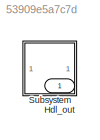
MODEL slx_53909e5a7c7d
KIND model
CONFIG AbsTol = auto
CONFIG EnableMultiTasking = off
CONFIG FixedStep = auto
CONFIG MaxStep = auto
CONFIG MinStep = auto
CONFIG RelTol = 1e-3
CONFIG SampleTimeConstraint = Unconstrained
CONFIG SolverName = VariableStepAuto
CONFIG StartTime = 0.0
CONFIG StopTime = 10.0
BLOCK [Outport] Hdl_out
  OutDataTypeStr = uint8
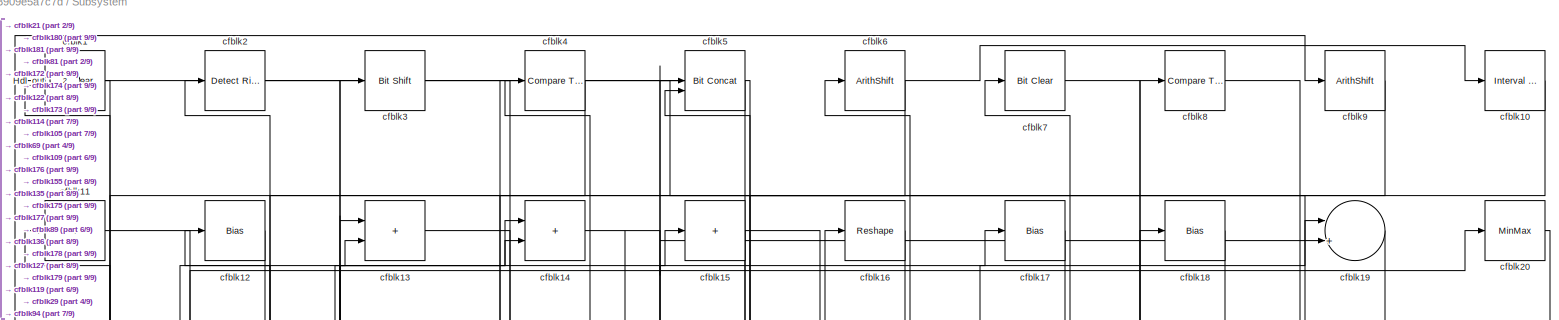
[diagram: Subsystem - part 1/9, full width, top band]
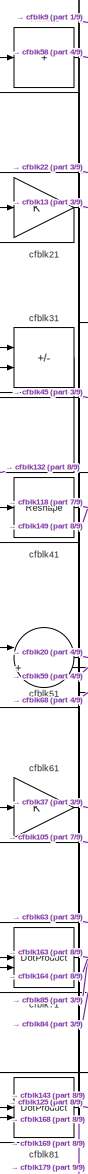
[diagram: Subsystem - part 2/9, top left region]
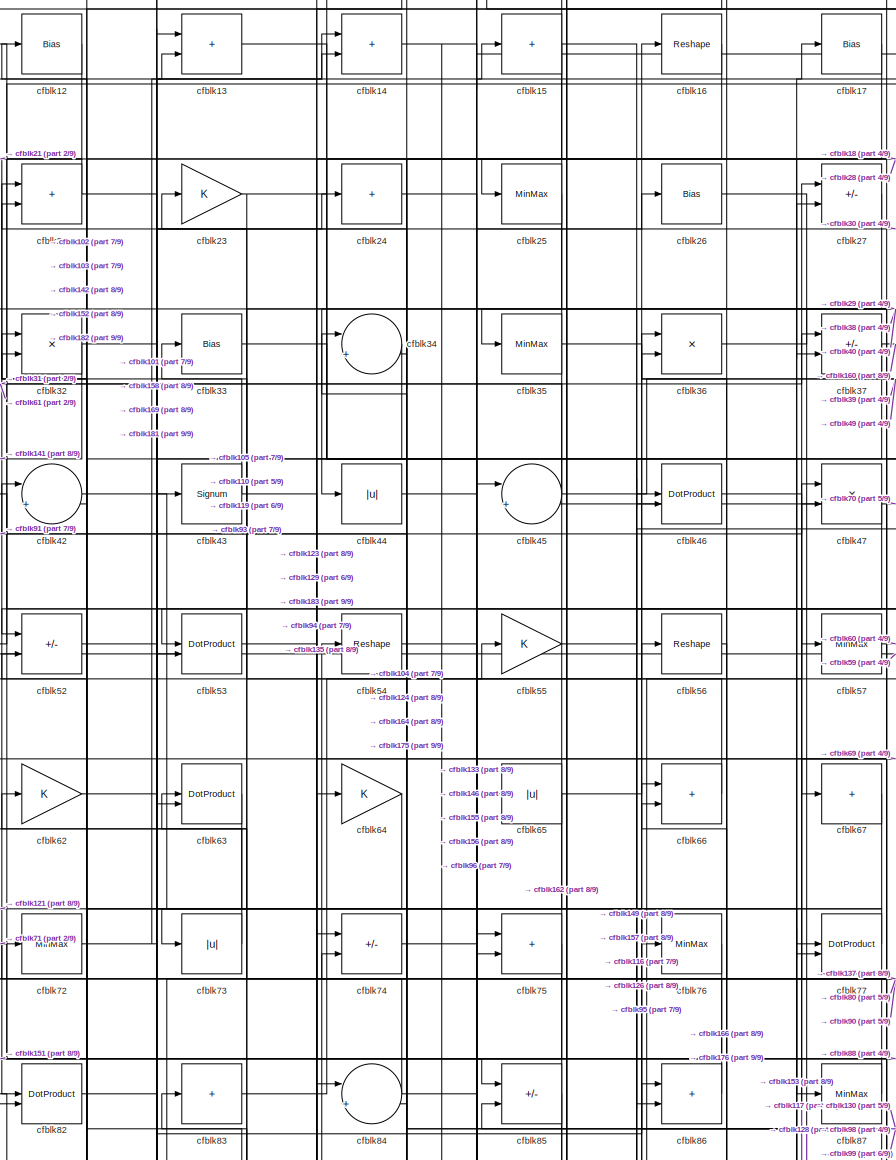
[diagram: Subsystem - part 3/9, top center region]
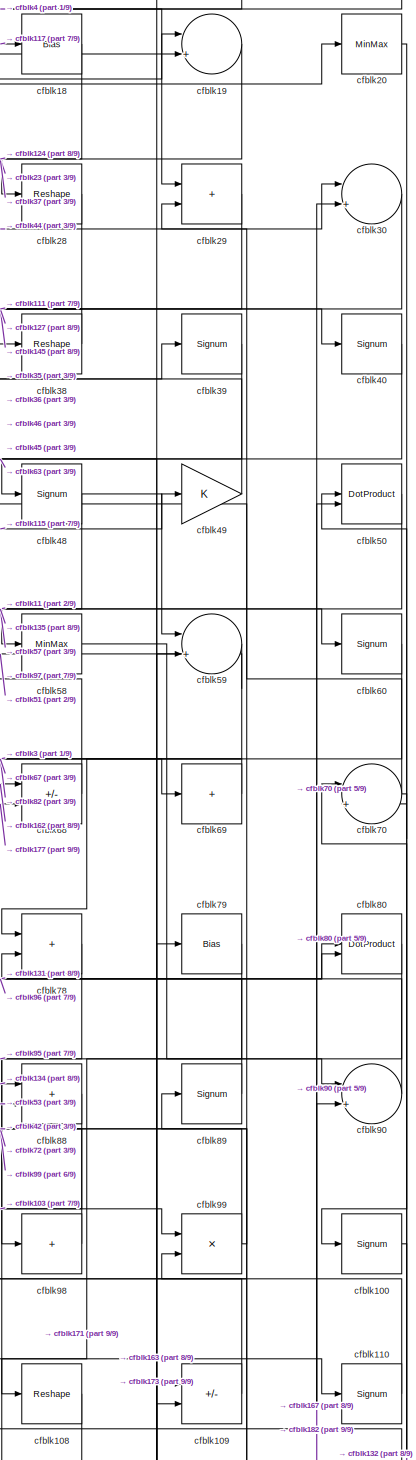
[diagram: Subsystem - part 4/9, top right region]
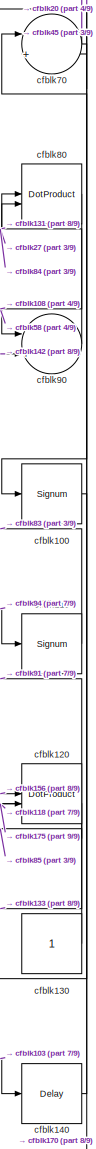
[diagram: Subsystem - part 5/9, middle right region]
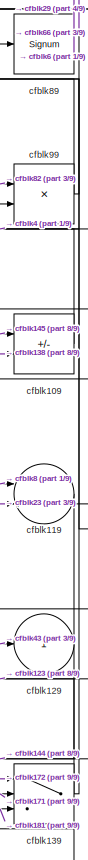
[diagram: Subsystem - part 6/9, middle right region]
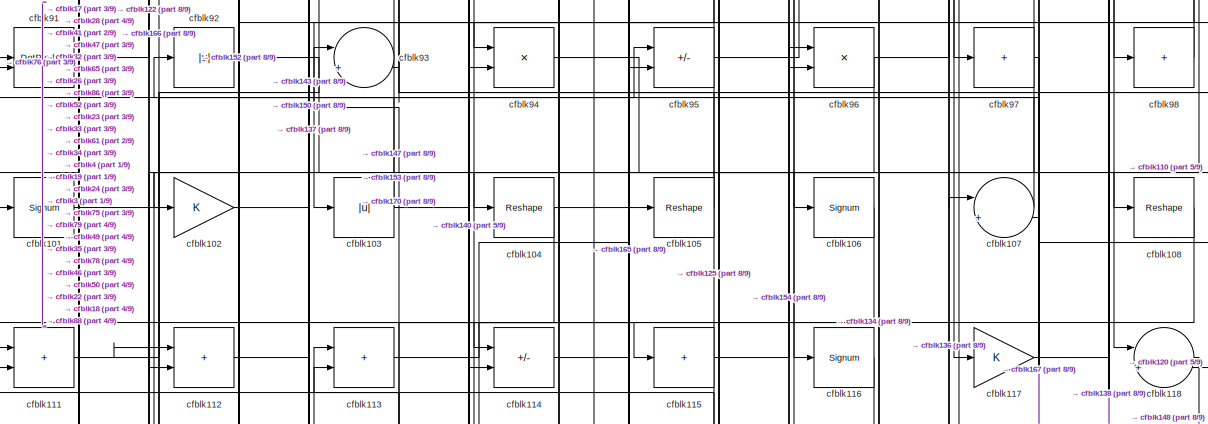
[diagram: Subsystem - part 7/9, full width, middle band]
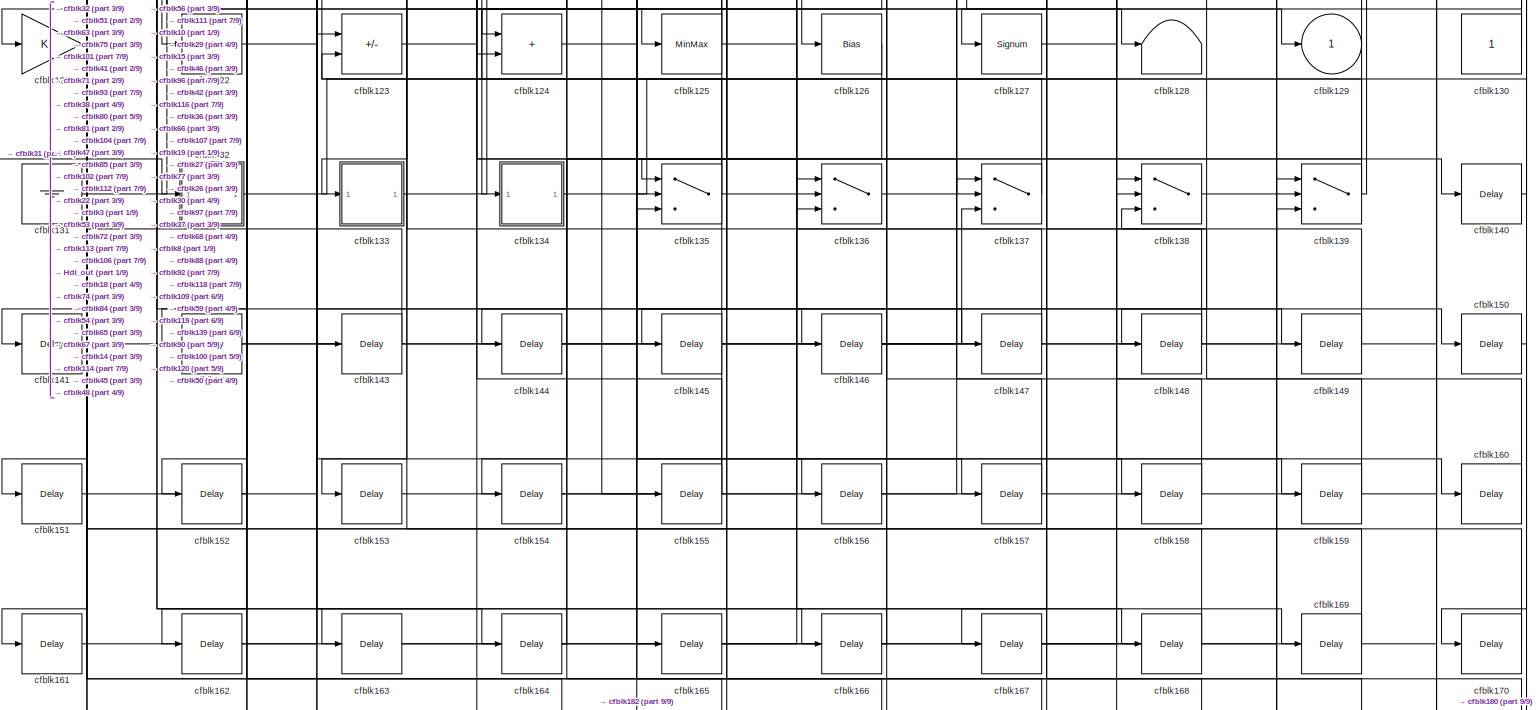
[diagram: Subsystem - part 8/9, full width, bottom band]
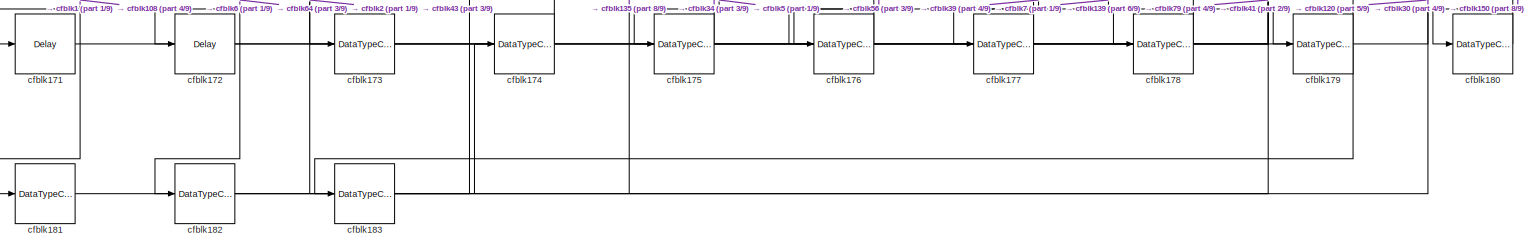
[diagram: Subsystem - part 9/9, full width, bottom band]
BLOCK [SubSystem] Subsystem
BLOCK [Outport] Subsystem/Hdl_out
  OutDataTypeStr = uint8
  Port = 2
BLOCK [Reference] Subsystem/cfblk1  REF=simulink/Logic and Bit
Operations/Bit Clear
  LibrarySourceBlock = hdlsllib/Logic and Bit\nOperations/Bit Clear
  SourceBlock = simulink/Logic and Bit\nOperations/Bit Clear
  SourceType = Bit Clear
BLOCK [Reference] Subsystem/cfblk10  REF=hdlsllib/Logic and Bit
Operations/Interval Test
  SourceBlock = hdlsllib/Logic and Bit\nOperations/Interval Test
  SourceType = Interval Test
BLOCK [Signum] Subsystem/cfblk100
BLOCK [Signum] Subsystem/cfblk101
BLOCK [Gain] Subsystem/cfblk102
  OutDataTypeStr = uint8
BLOCK [Abs] Subsystem/cfblk103
  OutDataTypeStr = uint8
  SaturateOnIntegerOverflow = off
BLOCK [Reshape] Subsystem/cfblk104
BLOCK [Reshape] Subsystem/cfblk105
BLOCK [Signum] Subsystem/cfblk106
BLOCK [Sum] Subsystem/cfblk107
  Inputs = |++
  OutDataTypeStr = uint8
BLOCK [Reshape] Subsystem/cfblk108
BLOCK [Sum] Subsystem/cfblk109
  IconShape = rectangular
  Inputs = +-
  OutDataTypeStr = uint8
BLOCK [Sum] Subsystem/cfblk11
  IconShape = rectangular
  Inputs = +
  OutDataTypeStr = uint8
BLOCK [Signum] Subsystem/cfblk110
BLOCK [Sum] Subsystem/cfblk111
  IconShape = rectangular
  OutDataTypeStr = uint8
BLOCK [Sum] Subsystem/cfblk112
  IconShape = rectangular
  OutDataTypeStr = uint8
BLOCK [Sum] Subsystem/cfblk113
  IconShape = rectangular
  OutDataTypeStr = uint8
BLOCK [Sum] Subsystem/cfblk114
  IconShape = rectangular
  Inputs = +-
  OutDataTypeStr = uint8
BLOCK [Sum] Subsystem/cfblk115
  IconShape = rectangular
  Inputs = +
  OutDataTypeStr = uint8
BLOCK [Signum] Subsystem/cfblk116
BLOCK [Gain] Subsystem/cfblk117
  OutDataTypeStr = uint8
BLOCK [Sum] Subsystem/cfblk118
  Inputs = |++
  OutDataTypeStr = uint8
BLOCK [Sum] Subsystem/cfblk119
  Inputs = |++
  OutDataTypeStr = uint8
BLOCK [Bias] Subsystem/cfblk12
  Bias = 0.0
  SaturateOnIntegerOverflow = off
BLOCK [DotProduct] Subsystem/cfblk120
  OutDataTypeStr = uint8
BLOCK [Gain] Subsystem/cfblk121
  OutDataTypeStr = uint8
BLOCK [Sum] Subsystem/cfblk122
  IconShape = rectangular
  Inputs = +
  OutDataTypeStr = uint8
BLOCK [Sum] Subsystem/cfblk123
  IconShape = rectangular
  Inputs = +-
  OutDataTypeStr = uint8
BLOCK [Sum] Subsystem/cfblk124
  IconShape = rectangular
  OutDataTypeStr = uint8
BLOCK [MinMax] Subsystem/cfblk125
  OutDataTypeStr = uint8
BLOCK [Bias] Subsystem/cfblk126
  Bias = 0.0
  SaturateOnIntegerOverflow = off
BLOCK [Signum] Subsystem/cfblk127
BLOCK [Terminator] Subsystem/cfblk128
BLOCK [Outport] Subsystem/cfblk129
  OutDataTypeStr = uint8
  VectorParamsAs1DForOutWhenUnconnected = off
BLOCK [Sum] Subsystem/cfblk13
  IconShape = rectangular
  OutDataTypeStr = uint8
BLOCK [Constant] Subsystem/cfblk130
  OutDataTypeStr = uint8
  SampleTime = -1
BLOCK [Ground] Subsystem/cfblk131
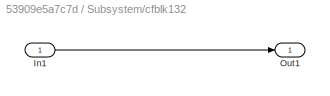
BLOCK [SubSystem] Subsystem/cfblk132
  LibrarySourceBlock = hdlsllib/Ports &\nSubsystems/Subsystem
BLOCK [Inport] Subsystem/cfblk132/In1
BLOCK [Outport] Subsystem/cfblk132/Out1
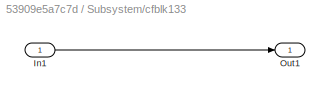
BLOCK [SubSystem] Subsystem/cfblk133
  LibrarySourceBlock = hdlsllib/Ports &\nSubsystems/Subsystem
BLOCK [Inport] Subsystem/cfblk133/In1
BLOCK [Outport] Subsystem/cfblk133/Out1
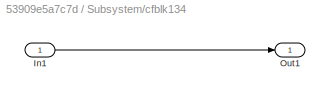
BLOCK [SubSystem] Subsystem/cfblk134
  LibrarySourceBlock = hdlsllib/Ports &\nSubsystems/Subsystem
BLOCK [Inport] Subsystem/cfblk134/In1
BLOCK [Outport] Subsystem/cfblk134/Out1
BLOCK [Switch] Subsystem/cfblk135
  InputSameDT = off
  OutDataTypeStr = uint8
  SaturateOnIntegerOverflow = off
BLOCK [Switch] Subsystem/cfblk136
  InputSameDT = off
  OutDataTypeStr = uint8
  SaturateOnIntegerOverflow = off
BLOCK [Switch] Subsystem/cfblk137
  InputSameDT = off
  OutDataTypeStr = uint8
  SaturateOnIntegerOverflow = off
BLOCK [Switch] Subsystem/cfblk138
  InputSameDT = off
  OutDataTypeStr = uint8
  SaturateOnIntegerOverflow = off
BLOCK [Switch] Subsystem/cfblk139
  InputSameDT = off
  OutDataTypeStr = uint8
  SaturateOnIntegerOverflow = off
BLOCK [Sum] Subsystem/cfblk14
  IconShape = rectangular
  OutDataTypeStr = uint8
BLOCK [Delay] Subsystem/cfblk140
  InputPortMap = u0
  SampleTime = 1
BLOCK [Delay] Subsystem/cfblk141
  InputPortMap = u0
  SampleTime = 1
BLOCK [Delay] Subsystem/cfblk142
  InputPortMap = u0
  SampleTime = 1
BLOCK [Delay] Subsystem/cfblk143
  InputPortMap = u0
  SampleTime = 1
BLOCK [Delay] Subsystem/cfblk144
  InputPortMap = u0
  SampleTime = 1
BLOCK [Delay] Subsystem/cfblk145
  InputPortMap = u0
  SampleTime = 1
BLOCK [Delay] Subsystem/cfblk146
  InputPortMap = u0
  SampleTime = 1
BLOCK [Delay] Subsystem/cfblk147
  InputPortMap = u0
  SampleTime = 1
BLOCK [Delay] Subsystem/cfblk148
  InputPortMap = u0
  SampleTime = 1
BLOCK [Delay] Subsystem/cfblk149
  InputPortMap = u0
  SampleTime = 1
BLOCK [Sum] Subsystem/cfblk15
  IconShape = rectangular
  Inputs = +
  OutDataTypeStr = uint8
BLOCK [Delay] Subsystem/cfblk150
  InputPortMap = u0
  SampleTime = 1
BLOCK [Delay] Subsystem/cfblk151
  InputPortMap = u0
  SampleTime = 1
BLOCK [Delay] Subsystem/cfblk152
  InputPortMap = u0
  SampleTime = 1
BLOCK [Delay] Subsystem/cfblk153
  InputPortMap = u0
  SampleTime = 1
BLOCK [Delay] Subsystem/cfblk154
  InputPortMap = u0
  SampleTime = 1
BLOCK [Delay] Subsystem/cfblk155
  InputPortMap = u0
  SampleTime = 1
BLOCK [Delay] Subsystem/cfblk156
  InputPortMap = u0
  SampleTime = 1
BLOCK [Delay] Subsystem/cfblk157
  InputPortMap = u0
  SampleTime = 1
BLOCK [Delay] Subsystem/cfblk158
  InputPortMap = u0
  SampleTime = 1
BLOCK [Delay] Subsystem/cfblk159
  InputPortMap = u0
  SampleTime = 1
BLOCK [Reshape] Subsystem/cfblk16
BLOCK [Delay] Subsystem/cfblk160
  InputPortMap = u0
  SampleTime = 1
BLOCK [Delay] Subsystem/cfblk161
  InputPortMap = u0
  SampleTime = 1
BLOCK [Delay] Subsystem/cfblk162
  InputPortMap = u0
  SampleTime = 1
BLOCK [Delay] Subsystem/cfblk163
  InputPortMap = u0
  SampleTime = 1
BLOCK [Delay] Subsystem/cfblk164
  InputPortMap = u0
  SampleTime = 1
BLOCK [Delay] Subsystem/cfblk165
  InputPortMap = u0
  SampleTime = 1
BLOCK [Delay] Subsystem/cfblk166
  InputPortMap = u0
  SampleTime = 1
BLOCK [Delay] Subsystem/cfblk167
  InputPortMap = u0
  SampleTime = 1
BLOCK [Delay] Subsystem/cfblk168
  InputPortMap = u0
  SampleTime = 1
BLOCK [Delay] Subsystem/cfblk169
  InputPortMap = u0
  SampleTime = 1
BLOCK [Bias] Subsystem/cfblk17
  Bias = 0.0
  SaturateOnIntegerOverflow = off
BLOCK [Delay] Subsystem/cfblk170
  InputPortMap = u0
  SampleTime = 1
BLOCK [Delay] Subsystem/cfblk171
  InputPortMap = u0
  SampleTime = 1
BLOCK [Delay] Subsystem/cfblk172
  InputPortMap = u0
  SampleTime = 1
BLOCK [DataTypeConversion] Subsystem/cfblk173
  OutDataTypeStr = uint8
  RndMeth = Floor
  SaturateOnIntegerOverflow = off
BLOCK [DataTypeConversion] Subsystem/cfblk174
  OutDataTypeStr = uint8
  RndMeth = Floor
  SaturateOnIntegerOverflow = off
BLOCK [DataTypeConversion] Subsystem/cfblk175
  OutDataTypeStr = uint8
  RndMeth = Floor
  SaturateOnIntegerOverflow = off
BLOCK [DataTypeConversion] Subsystem/cfblk176
  OutDataTypeStr = uint8
  RndMeth = Floor
  SaturateOnIntegerOverflow = off
BLOCK [DataTypeConversion] Subsystem/cfblk177
  OutDataTypeStr = uint8
  RndMeth = Floor
  SaturateOnIntegerOverflow = off
BLOCK [DataTypeConversion] Subsystem/cfblk178
  OutDataTypeStr = uint8
  RndMeth = Floor
  SaturateOnIntegerOverflow = off
BLOCK [DataTypeConversion] Subsystem/cfblk179
  OutDataTypeStr = uint8
  RndMeth = Floor
  SaturateOnIntegerOverflow = off
BLOCK [Bias] Subsystem/cfblk18
  Bias = 0.0
  SaturateOnIntegerOverflow = off
BLOCK [DataTypeConversion] Subsystem/cfblk180
  OutDataTypeStr = uint8
  RndMeth = Floor
  SaturateOnIntegerOverflow = off
BLOCK [DataTypeConversion] Subsystem/cfblk181
  OutDataTypeStr = uint8
  RndMeth = Floor
  SaturateOnIntegerOverflow = off
BLOCK [DataTypeConversion] Subsystem/cfblk182
  OutDataTypeStr = uint8
  RndMeth = Floor
  SaturateOnIntegerOverflow = off
BLOCK [DataTypeConversion] Subsystem/cfblk183
  OutDataTypeStr = uint8
  RndMeth = Floor
  SaturateOnIntegerOverflow = off
BLOCK [Sum] Subsystem/cfblk19
  Inputs = |++
  OutDataTypeStr = uint8
BLOCK [Reference] Subsystem/cfblk2  REF=hdlsllib/Logic and Bit
Operations/Detect Rise
Nonnegative
  SourceBlock = hdlsllib/Logic and Bit\nOperations/Detect Rise\nNonnegative
  SourceType = Detect Rise Nonnegative
BLOCK [MinMax] Subsystem/cfblk20
  OutDataTypeStr = uint8
BLOCK [Gain] Subsystem/cfblk21
  OutDataTypeStr = uint8
BLOCK [Sum] Subsystem/cfblk22
  IconShape = rectangular
  OutDataTypeStr = uint8
BLOCK [Gain] Subsystem/cfblk23
  OutDataTypeStr = uint8
BLOCK [Sum] Subsystem/cfblk24
  IconShape = rectangular
  Inputs = +
  OutDataTypeStr = uint8
BLOCK [MinMax] Subsystem/cfblk25
  OutDataTypeStr = uint8
BLOCK [Bias] Subsystem/cfblk26
  Bias = 0.0
  SaturateOnIntegerOverflow = off
BLOCK [Sum] Subsystem/cfblk27
  IconShape = rectangular
  Inputs = +-
  OutDataTypeStr = uint8
BLOCK [Reshape] Subsystem/cfblk28
BLOCK [Sum] Subsystem/cfblk29
  IconShape = rectangular
  OutDataTypeStr = uint8
BLOCK [Reference] Subsystem/cfblk3  REF=hdlsllib/Logic and Bit
Operations/Bit Shift
  SourceBlock = hdlsllib/Logic and Bit\nOperations/Bit Shift
  SourceType = Bit Shift
BLOCK [Sum] Subsystem/cfblk30
  Inputs = |++
  OutDataTypeStr = uint8
BLOCK [Sum] Subsystem/cfblk31
  IconShape = rectangular
  Inputs = +-
  OutDataTypeStr = uint8
BLOCK [Product] Subsystem/cfblk32
  Inputs = */
  OutDataTypeStr = uint8
  RndMeth = Zero
  SaturateOnIntegerOverflow = on
BLOCK [Bias] Subsystem/cfblk33
  Bias = 0.0
  SaturateOnIntegerOverflow = off
BLOCK [Sum] Subsystem/cfblk34
  Inputs = |++
  OutDataTypeStr = uint8
BLOCK [MinMax] Subsystem/cfblk35
  OutDataTypeStr = uint8
BLOCK [Product] Subsystem/cfblk36
  Inputs = */
  OutDataTypeStr = uint8
  RndMeth = Zero
  SaturateOnIntegerOverflow = on
BLOCK [Sum] Subsystem/cfblk37
  IconShape = rectangular
  Inputs = +-
  OutDataTypeStr = uint8
BLOCK [Reshape] Subsystem/cfblk38
BLOCK [Signum] Subsystem/cfblk39
BLOCK [Reference] Subsystem/cfblk4  REF=hdlsllib/Logic and Bit
Operations/Compare
To Zero
  SourceBlock = hdlsllib/Logic and Bit\nOperations/Compare\nTo Zero
  SourceType = Compare To Zero
BLOCK [Signum] Subsystem/cfblk40
BLOCK [Reshape] Subsystem/cfblk41
BLOCK [Sum] Subsystem/cfblk42
  Inputs = |++
  OutDataTypeStr = uint8
BLOCK [Signum] Subsystem/cfblk43
BLOCK [Abs] Subsystem/cfblk44
  OutDataTypeStr = uint8
  SaturateOnIntegerOverflow = off
BLOCK [Sum] Subsystem/cfblk45
  Inputs = |++
  OutDataTypeStr = uint8
BLOCK [DotProduct] Subsystem/cfblk46
  OutDataTypeStr = uint8
BLOCK [Product] Subsystem/cfblk47
  Inputs = */
  OutDataTypeStr = uint8
  RndMeth = Zero
  SaturateOnIntegerOverflow = on
BLOCK [Signum] Subsystem/cfblk48
BLOCK [Gain] Subsystem/cfblk49
  OutDataTypeStr = uint8
BLOCK [Reference] Subsystem/cfblk5  REF=hdlsllib/Logic and Bit
Operations/Bit Concat
  SourceBlock = hdlsllib/Logic and Bit\nOperations/Bit Concat
  SourceType = Bit Concat
BLOCK [DotProduct] Subsystem/cfblk50
  OutDataTypeStr = uint8
BLOCK [Sum] Subsystem/cfblk51
  Inputs = |++
  OutDataTypeStr = uint8
BLOCK [Sum] Subsystem/cfblk52
  IconShape = rectangular
  Inputs = +-
  OutDataTypeStr = uint8
BLOCK [DotProduct] Subsystem/cfblk53
  OutDataTypeStr = uint8
BLOCK [Reshape] Subsystem/cfblk54
BLOCK [Gain] Subsystem/cfblk55
  OutDataTypeStr = uint8
BLOCK [Reshape] Subsystem/cfblk56
BLOCK [MinMax] Subsystem/cfblk57
  OutDataTypeStr = uint8
BLOCK [MinMax] Subsystem/cfblk58
  OutDataTypeStr = uint8
BLOCK [Sum] Subsystem/cfblk59
  Inputs = |++
  OutDataTypeStr = uint8
BLOCK [ArithShift] Subsystem/cfblk6
  BitShiftNumber = 8
  InputPortMap = u0
BLOCK [Signum] Subsystem/cfblk60
BLOCK [Gain] Subsystem/cfblk61
  OutDataTypeStr = uint8
BLOCK [Gain] Subsystem/cfblk62
  OutDataTypeStr = uint8
BLOCK [DotProduct] Subsystem/cfblk63
  OutDataTypeStr = uint8
BLOCK [Gain] Subsystem/cfblk64
  OutDataTypeStr = uint8
BLOCK [Abs] Subsystem/cfblk65
  OutDataTypeStr = uint8
  SaturateOnIntegerOverflow = off
BLOCK [Sum] Subsystem/cfblk66
  IconShape = rectangular
  OutDataTypeStr = uint8
BLOCK [Sum] Subsystem/cfblk67
  IconShape = rectangular
  Inputs = +
  OutDataTypeStr = uint8
BLOCK [Sum] Subsystem/cfblk68
  IconShape = rectangular
  Inputs = +-
  OutDataTypeStr = uint8
BLOCK [Sum] Subsystem/cfblk69
  IconShape = rectangular
  Inputs = +
  OutDataTypeStr = uint8
BLOCK [Reference] Subsystem/cfblk7  REF=simulink/Logic and Bit
Operations/Bit Clear
  LibrarySourceBlock = hdlsllib/Logic and Bit\nOperations/Bit Clear
  SourceBlock = simulink/Logic and Bit\nOperations/Bit Clear
  SourceType = Bit Clear
BLOCK [Sum] Subsystem/cfblk70
  Inputs = |++
  OutDataTypeStr = uint8
BLOCK [DotProduct] Subsystem/cfblk71
  OutDataTypeStr = uint8
BLOCK [MinMax] Subsystem/cfblk72
  OutDataTypeStr = uint8
BLOCK [Abs] Subsystem/cfblk73
  OutDataTypeStr = uint8
  SaturateOnIntegerOverflow = off
BLOCK [Sum] Subsystem/cfblk74
  IconShape = rectangular
  Inputs = +-
  OutDataTypeStr = uint8
BLOCK [Sum] Subsystem/cfblk75
  IconShape = rectangular
  OutDataTypeStr = uint8
BLOCK [MinMax] Subsystem/cfblk76
  OutDataTypeStr = uint8
BLOCK [DotProduct] Subsystem/cfblk77
  OutDataTypeStr = uint8
BLOCK [Sum] Subsystem/cfblk78
  IconShape = rectangular
  OutDataTypeStr = uint8
BLOCK [Bias] Subsystem/cfblk79
  Bias = 0.0
  SaturateOnIntegerOverflow = off
BLOCK [Reference] Subsystem/cfblk8  REF=hdlsllib/Logic and Bit
Operations/Compare
To Constant
  SourceBlock = hdlsllib/Logic and Bit\nOperations/Compare\nTo Constant
  SourceType = Compare To Constant
BLOCK [DotProduct] Subsystem/cfblk80
  OutDataTypeStr = uint8
BLOCK [DotProduct] Subsystem/cfblk81
  OutDataTypeStr = uint8
BLOCK [DotProduct] Subsystem/cfblk82
  OutDataTypeStr = uint8
BLOCK [Sum] Subsystem/cfblk83
  IconShape = rectangular
  Inputs = +
  OutDataTypeStr = uint8
BLOCK [Sum] Subsystem/cfblk84
  Inputs = |++
  OutDataTypeStr = uint8
BLOCK [Sum] Subsystem/cfblk85
  IconShape = rectangular
  Inputs = +-
  OutDataTypeStr = uint8
BLOCK [Sum] Subsystem/cfblk86
  IconShape = rectangular
  OutDataTypeStr = uint8
BLOCK [MinMax] Subsystem/cfblk87
  OutDataTypeStr = uint8
BLOCK [Sum] Subsystem/cfblk88
  IconShape = rectangular
  OutDataTypeStr = uint8
BLOCK [Signum] Subsystem/cfblk89
BLOCK [ArithShift] Subsystem/cfblk9
  BitShiftNumber = 8
  InputPortMap = u0
BLOCK [Sum] Subsystem/cfblk90
  Inputs = |++
  OutDataTypeStr = uint8
BLOCK [DotProduct] Subsystem/cfblk91
  OutDataTypeStr = uint8
BLOCK [Abs] Subsystem/cfblk92
  OutDataTypeStr = uint8
  SaturateOnIntegerOverflow = off
BLOCK [Sum] Subsystem/cfblk93
  Inputs = |++
  OutDataTypeStr = uint8
BLOCK [Product] Subsystem/cfblk94
  Inputs = */
  OutDataTypeStr = uint8
  RndMeth = Zero
  SaturateOnIntegerOverflow = on
BLOCK [Sum] Subsystem/cfblk95
  IconShape = rectangular
  Inputs = +-
  OutDataTypeStr = uint8
BLOCK [Product] Subsystem/cfblk96
  Inputs = */
  OutDataTypeStr = uint8
  RndMeth = Zero
  SaturateOnIntegerOverflow = on
BLOCK [Sum] Subsystem/cfblk97
  IconShape = rectangular
  Inputs = +
  OutDataTypeStr = uint8
BLOCK [Sum] Subsystem/cfblk98
  IconShape = rectangular
  Inputs = +
  OutDataTypeStr = uint8
BLOCK [Product] Subsystem/cfblk99
  Inputs = */
  OutDataTypeStr = uint8
  RndMeth = Zero
  SaturateOnIntegerOverflow = on
LINE Subsystem/cfblk100:1 -> Subsystem/cfblk170:1
NET Subsystem/cfblk101:1 -> Subsystem/cfblk136:2, Subsystem/cfblk166:1, Subsystem/cfblk26:1, Subsystem/cfblk86:1
NET Subsystem/cfblk102:1 -> Subsystem/cfblk150:1, Subsystem/cfblk24:1
NET Subsystem/cfblk103:1 -> Subsystem/cfblk140:1, Subsystem/cfblk32:1
NET Subsystem/cfblk104:1 -> Subsystem/cfblk152:1, Subsystem/cfblk75:1
NET Subsystem/cfblk105:1 -> Subsystem/cfblk33:1, Subsystem/cfblk61:1
LINE Subsystem/cfblk106:1 -> Subsystem/cfblk153:1
LINE Subsystem/cfblk107:1 -> Subsystem/cfblk92:1
LINE Subsystem/cfblk108:1 -> Subsystem/cfblk171:1
LINE Subsystem/cfblk109:1 -> Subsystem/cfblk4:1
LINE Subsystem/cfblk10:1 -> Subsystem/cfblk135:1
LINE Subsystem/cfblk110:1 -> Subsystem/cfblk83:1
NET Subsystem/cfblk111:1 -> Subsystem/cfblk112:1, Subsystem/cfblk95:1
LINE Subsystem/cfblk112:1 -> Subsystem/cfblk143:1
LINE Subsystem/cfblk113:1 -> Subsystem/cfblk115:1
LINE Subsystem/cfblk114:1 -> Subsystem/cfblk165:1
LINE Subsystem/cfblk115:1 -> Subsystem/cfblk49:1
LINE Subsystem/cfblk116:1 -> Subsystem/cfblk134:1
LINE Subsystem/cfblk117:1 -> Subsystem/cfblk18:1
LINE Subsystem/cfblk118:1 -> Subsystem/cfblk148:1
LINE Subsystem/cfblk119:1 -> Subsystem/cfblk144:1
LINE Subsystem/cfblk11:1 -> Subsystem/cfblk58:1
NET Subsystem/cfblk120:1 -> Subsystem/cfblk118:2, Subsystem/cfblk133:1, Subsystem/cfblk91:1
LINE Subsystem/cfblk121:1 -> Subsystem/cfblk161:1
LINE Subsystem/cfblk122:1 -> Subsystem/cfblk3:1
NET Subsystem/cfblk123:1 -> Subsystem/cfblk136:3, Subsystem/cfblk84:1
NET Subsystem/cfblk124:1 -> Subsystem/cfblk159:1, Subsystem/cfblk56:1
NET Subsystem/cfblk125:1 -> Subsystem/cfblk111:2, Subsystem/cfblk168:1
LINE Subsystem/cfblk126:1 -> Subsystem/cfblk154:1
LINE Subsystem/cfblk127:1 -> Subsystem/cfblk8:1
LINE Subsystem/cfblk12:1 -> Subsystem/cfblk82:1
LINE Subsystem/cfblk130:1 -> Subsystem/cfblk85:2
NET Subsystem/cfblk131:1 -> Subsystem/cfblk38:1, Subsystem/cfblk80:2
LINE Subsystem/cfblk132/In1:1 -> Subsystem/cfblk132/Out1:1
LINE Subsystem/cfblk132:1 -> Subsystem/cfblk50:1
LINE Subsystem/cfblk133/In1:1 -> Subsystem/cfblk133/Out1:1
LINE Subsystem/cfblk133:1 -> Subsystem/cfblk65:1
LINE Subsystem/cfblk134/In1:1 -> Subsystem/cfblk134/Out1:1
LINE Subsystem/cfblk134:1 -> Subsystem/cfblk88:1
NET Subsystem/cfblk135:1 -> Subsystem/cfblk147:1, Subsystem/cfblk54:1
NET Subsystem/cfblk136:1 -> Subsystem/cfblk107:1, Subsystem/cfblk19:1
LINE Subsystem/cfblk137:1 -> Subsystem/cfblk113:1
LINE Subsystem/cfblk138:1 -> Subsystem/cfblk109:2
NET Subsystem/cfblk139:1 -> Subsystem/cfblk123:2, Subsystem/cfblk89:1, Subsystem/cfblk99:2
LINE Subsystem/cfblk13:1 -> Subsystem/cfblk75:2
LINE Subsystem/cfblk140:1 -> Subsystem/cfblk70:1
LINE Subsystem/cfblk141:1 -> Subsystem/cfblk45:1
LINE Subsystem/cfblk142:1 -> Subsystem/cfblk90:2
LINE Subsystem/cfblk143:1 -> Subsystem/cfblk51:1
LINE Subsystem/cfblk144:1 -> Subsystem/cfblk137:3
LINE Subsystem/cfblk145:1 -> Subsystem/cfblk109:1
LINE Subsystem/cfblk146:1 -> Subsystem/cfblk27:2
LINE Subsystem/cfblk147:1 -> Subsystem/cfblk93:1
LINE Subsystem/cfblk148:1 -> Subsystem/cfblk107:2
LINE Subsystem/cfblk149:1 -> Subsystem/cfblk46:1
NET Subsystem/cfblk14:1 -> Subsystem/cfblk155:1, Subsystem/cfblk156:1
LINE Subsystem/cfblk150:1 -> Subsystem/cfblk180:1
LINE Subsystem/cfblk151:1 -> Subsystem/cfblk53:2
LINE Subsystem/cfblk152:1 -> Subsystem/cfblk32:2
LINE Subsystem/cfblk153:1 -> Subsystem/cfblk77:1
LINE Subsystem/cfblk154:1 -> Subsystem/cfblk96:1
NET Subsystem/cfblk155:1 -> Subsystem/Hdl_out:1, Subsystem/cfblk74:1
LINE Subsystem/cfblk156:1 -> Subsystem/cfblk120:1
LINE Subsystem/cfblk157:1 -> Subsystem/cfblk137:1
LINE Subsystem/cfblk158:1 -> Subsystem/cfblk138:2
LINE Subsystem/cfblk159:1 -> Subsystem/cfblk138:3
NET Subsystem/cfblk15:1 -> Subsystem/cfblk157:1, Subsystem/cfblk52:1
LINE Subsystem/cfblk160:1 -> Subsystem/cfblk36:2
LINE Subsystem/cfblk161:1 -> Subsystem/cfblk123:1
LINE Subsystem/cfblk162:1 -> Subsystem/cfblk68:1
LINE Subsystem/cfblk163:1 -> Subsystem/cfblk59:2
LINE Subsystem/cfblk164:1 -> Subsystem/cfblk84:2
LINE Subsystem/cfblk165:1 -> Subsystem/cfblk136:1
LINE Subsystem/cfblk166:1 -> Subsystem/cfblk66:2
LINE Subsystem/cfblk167:1 -> Subsystem/cfblk50:2
LINE Subsystem/cfblk168:1 -> Subsystem/cfblk81:2
LINE Subsystem/cfblk169:1 -> Subsystem/cfblk31:2
LINE Subsystem/cfblk16:1 -> Subsystem/cfblk25:1
LINE Subsystem/cfblk170:1 -> Subsystem/cfblk113:2
LINE Subsystem/cfblk171:1 -> Subsystem/cfblk139:2
LINE Subsystem/cfblk172:1 -> Subsystem/cfblk139:1
LINE Subsystem/cfblk173:1 -> Subsystem/cfblk79:1
LINE Subsystem/cfblk174:1 -> Subsystem/cfblk2:1
NET Subsystem/cfblk175:1 -> Subsystem/cfblk120:2, Subsystem/cfblk178:1, Subsystem/cfblk34:1
LINE Subsystem/cfblk176:1 -> Subsystem/cfblk5:1
LINE Subsystem/cfblk177:1 -> Subsystem/cfblk5:2
LINE Subsystem/cfblk178:1 -> Subsystem/cfblk7:1
NET Subsystem/cfblk179:1 -> Subsystem/cfblk183:1, Subsystem/cfblk41:1
NET Subsystem/cfblk17:1 -> Subsystem/cfblk101:1, Subsystem/cfblk34:2
LINE Subsystem/cfblk180:1 -> Subsystem/cfblk1:1
NET Subsystem/cfblk181:1 -> Subsystem/cfblk139:3, Subsystem/cfblk43:1
NET Subsystem/cfblk182:1 -> Subsystem/cfblk135:3, Subsystem/cfblk174:1, Subsystem/cfblk30:2
LINE Subsystem/cfblk183:1 -> Subsystem/cfblk64:1
NET Subsystem/cfblk18:1 -> Subsystem/cfblk124:2, Subsystem/cfblk37:2
LINE Subsystem/cfblk19:1 -> Subsystem/cfblk94:1
LINE Subsystem/cfblk1:1 -> Subsystem/cfblk181:1
LINE Subsystem/cfblk20:1 -> Subsystem/cfblk70:2
NET Subsystem/cfblk21:1 -> Subsystem/cfblk13:2, Subsystem/cfblk9:1
NET Subsystem/cfblk22:1 -> Subsystem/cfblk169:1, Subsystem/cfblk21:1
NET Subsystem/cfblk23:1 -> Subsystem/cfblk119:2, Subsystem/cfblk28:1, Subsystem/cfblk93:2
NET Subsystem/cfblk24:1 -> Subsystem/cfblk104:1, Subsystem/cfblk96:2
LINE Subsystem/cfblk25:1 -> Subsystem/cfblk44:1
LINE Subsystem/cfblk26:1 -> Subsystem/cfblk128:1
LINE Subsystem/cfblk27:1 -> Subsystem/cfblk53:1
LINE Subsystem/cfblk28:1 -> Subsystem/cfblk111:1
NET Subsystem/cfblk29:1 -> Subsystem/cfblk145:1, Subsystem/cfblk46:2
LINE Subsystem/cfblk2:1 -> Subsystem/cfblk173:1
LINE Subsystem/cfblk30:1 -> Subsystem/cfblk127:1
LINE Subsystem/cfblk31:1 -> Subsystem/cfblk132:1
NET Subsystem/cfblk32:1 -> Subsystem/cfblk141:1, Subsystem/cfblk77:2
LINE Subsystem/cfblk33:1 -> Subsystem/cfblk87:1
LINE Subsystem/cfblk34:1 -> Subsystem/cfblk94:2
LINE Subsystem/cfblk35:1 -> Subsystem/cfblk116:1
LINE Subsystem/cfblk36:1 -> Subsystem/cfblk40:1
NET Subsystem/cfblk37:1 -> Subsystem/cfblk160:1, Subsystem/cfblk42:2, Subsystem/cfblk86:2
LINE Subsystem/cfblk38:1 -> Subsystem/cfblk35:1
NET Subsystem/cfblk39:1 -> Subsystem/cfblk177:1, Subsystem/cfblk68:2
NET Subsystem/cfblk3:1 -> Subsystem/cfblk105:1, Subsystem/cfblk69:1
NET Subsystem/cfblk40:1 -> Subsystem/cfblk48:1, Subsystem/cfblk63:2
NET Subsystem/cfblk41:1 -> Subsystem/cfblk118:1, Subsystem/cfblk149:1
NET Subsystem/cfblk42:1 -> Subsystem/cfblk126:1, Subsystem/cfblk14:1
NET Subsystem/cfblk43:1 -> Subsystem/cfblk129:1, Subsystem/cfblk22:1
LINE Subsystem/cfblk44:1 -> Subsystem/cfblk30:1
NET Subsystem/cfblk45:1 -> Subsystem/cfblk31:1, Subsystem/cfblk39:1
LINE Subsystem/cfblk46:1 -> Subsystem/cfblk117:1
LINE Subsystem/cfblk47:1 -> Subsystem/cfblk142:1
NET Subsystem/cfblk48:1 -> Subsystem/cfblk135:2, Subsystem/cfblk59:1
LINE Subsystem/cfblk49:1 -> Subsystem/cfblk36:1
NET Subsystem/cfblk4:1 -> Subsystem/cfblk114:2, Subsystem/cfblk19:2, Subsystem/cfblk29:1
LINE Subsystem/cfblk50:1 -> Subsystem/cfblk97:1
LINE Subsystem/cfblk51:1 -> Subsystem/cfblk20:1
LINE Subsystem/cfblk52:1 -> Subsystem/cfblk13:1
LINE Subsystem/cfblk53:1 -> Subsystem/cfblk88:2
LINE Subsystem/cfblk54:1 -> Subsystem/cfblk146:1
LINE Subsystem/cfblk55:1 -> Subsystem/cfblk57:1
LINE Subsystem/cfblk56:1 -> Subsystem/cfblk176:1
LINE Subsystem/cfblk57:1 -> Subsystem/cfblk60:1
LINE Subsystem/cfblk58:1 -> Subsystem/cfblk90:1
NET Subsystem/cfblk59:1 -> Subsystem/cfblk51:2, Subsystem/cfblk82:2
LINE Subsystem/cfblk5:1 -> Subsystem/cfblk175:1
LINE Subsystem/cfblk60:1 -> Subsystem/cfblk78:1
LINE Subsystem/cfblk61:1 -> Subsystem/cfblk37:1
NET Subsystem/cfblk62:1 -> Subsystem/cfblk12:1, Subsystem/cfblk14:2
NET Subsystem/cfblk63:1 -> Subsystem/cfblk121:1, Subsystem/cfblk71:2
LINE Subsystem/cfblk64:1 -> Subsystem/cfblk182:1
NET Subsystem/cfblk65:1 -> Subsystem/cfblk102:1, Subsystem/cfblk16:1
LINE Subsystem/cfblk66:1 -> Subsystem/cfblk23:1
NET Subsystem/cfblk67:1 -> Subsystem/cfblk124:1, Subsystem/cfblk76:1
LINE Subsystem/cfblk68:1 -> Subsystem/cfblk11:1
LINE Subsystem/cfblk69:1 -> Subsystem/cfblk67:1
NET Subsystem/cfblk6:1 -> Subsystem/cfblk10:1, Subsystem/cfblk172:1
NET Subsystem/cfblk70:1 -> Subsystem/cfblk100:1, Subsystem/cfblk45:2
NET Subsystem/cfblk71:1 -> Subsystem/cfblk163:1, Subsystem/cfblk164:1, Subsystem/cfblk85:1
NET Subsystem/cfblk72:1 -> Subsystem/cfblk158:1, Subsystem/cfblk15:1
LINE Subsystem/cfblk73:1 -> Subsystem/cfblk62:1
LINE Subsystem/cfblk74:1 -> Subsystem/cfblk17:1
LINE Subsystem/cfblk75:1 -> Subsystem/cfblk151:1
LINE Subsystem/cfblk76:1 -> Subsystem/cfblk91:2
LINE Subsystem/cfblk77:1 -> Subsystem/cfblk73:1
LINE Subsystem/cfblk78:1 -> Subsystem/cfblk98:1
LINE Subsystem/cfblk79:1 -> Subsystem/cfblk95:2
LINE Subsystem/cfblk7:1 -> Subsystem/cfblk179:1
LINE Subsystem/cfblk80:1 -> Subsystem/cfblk108:1
LINE Subsystem/cfblk81:1 -> Subsystem/cfblk125:1
LINE Subsystem/cfblk82:1 -> Subsystem/cfblk99:1
LINE Subsystem/cfblk83:1 -> Subsystem/cfblk55:1
NET Subsystem/cfblk84:1 -> Subsystem/cfblk137:2, Subsystem/cfblk71:1, Subsystem/cfblk80:1
LINE Subsystem/cfblk85:1 -> Subsystem/cfblk162:1
LINE Subsystem/cfblk86:1 -> Subsystem/cfblk63:1
LINE Subsystem/cfblk87:1 -> Subsystem/cfblk74:2
LINE Subsystem/cfblk88:1 -> Subsystem/cfblk103:1
LINE Subsystem/cfblk89:1 -> Subsystem/cfblk6:1
LINE Subsystem/cfblk8:1 -> Subsystem/cfblk119:1
LINE Subsystem/cfblk90:1 -> Subsystem/cfblk27:1
LINE Subsystem/cfblk91:1 -> Subsystem/cfblk47:1
LINE Subsystem/cfblk92:1 -> Subsystem/cfblk138:1
NET Subsystem/cfblk93:1 -> Subsystem/cfblk122:1, Subsystem/cfblk52:2
LINE Subsystem/cfblk94:1 -> Subsystem/cfblk110:1
LINE Subsystem/cfblk95:1 -> Subsystem/cfblk47:2
NET Subsystem/cfblk96:1 -> Subsystem/cfblk106:1, Subsystem/cfblk112:2, Subsystem/cfblk78:2
NET Subsystem/cfblk97:1 -> Subsystem/cfblk114:1, Subsystem/cfblk167:1, Subsystem/cfblk22:2
NET Subsystem/cfblk98:1 -> Subsystem/cfblk42:1, Subsystem/cfblk72:1
NET Subsystem/cfblk99:1 -> Subsystem/cfblk29:2, Subsystem/cfblk66:1
LINE Subsystem/cfblk9:1 -> Subsystem/cfblk81:1
note: NET lines group one-source signal fan-out (src -> all destinations, sorted); 1:1 wires keep LINE
